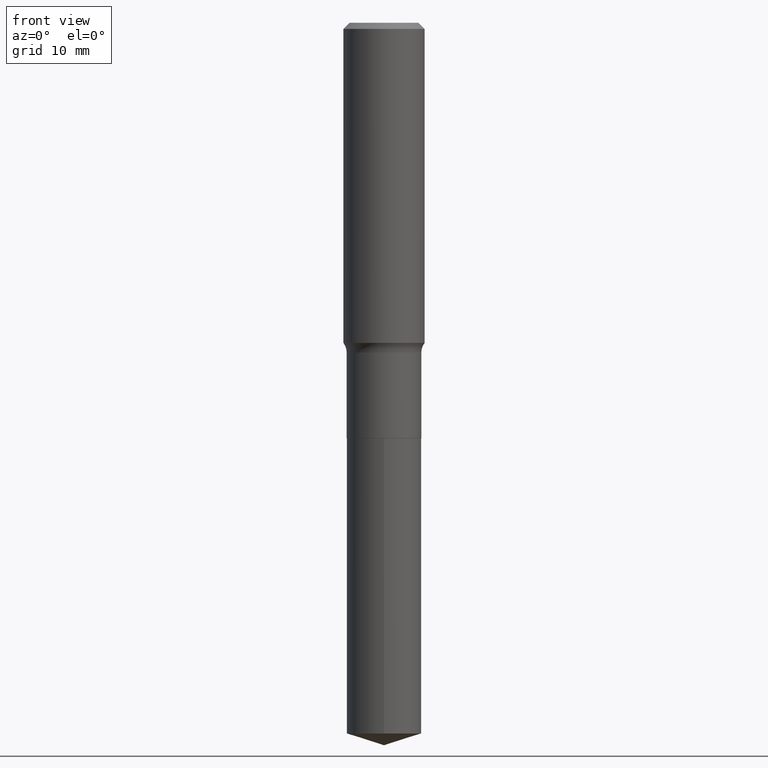
[diagram: clean part render]
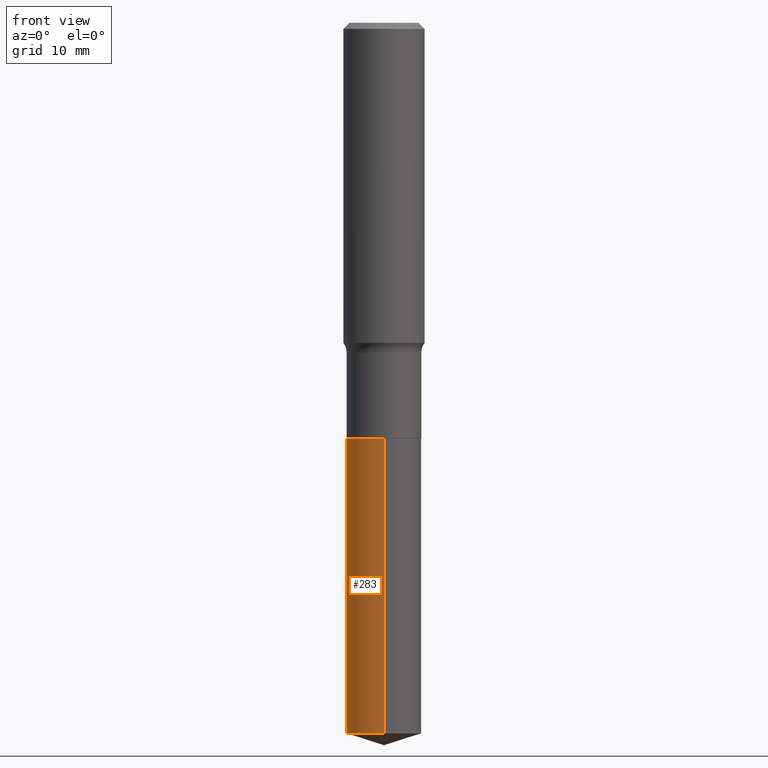
[diagram: same view with one face highlighted and labeled with its STEP entity id]
A machine part, front view. The second image highlights one B-rep face of the part: STEP entity #283.
In plain terms, the highlighted cylindrical surface (partial cylindrical patch) has radius 4.5999 mm, axis along (-0, 0, 1).
Its self-contained STEP definition (entity closure, byte-faithful):
#6 = AXIS2_PLACEMENT_3D ( 'NONE', #238, #266, #38 ) ;
#9 = CARTESIAN_POINT ( 'NONE',  ( 1.286792894461590621E-15, 0.1810999999999929888, -2.015700000000000269 ) ) ;
#30 = DIRECTION ( 'NONE',  ( -2.445392554448218203E-29, 3.491590535670392048E-15, 1.000000000000000000 ) ) ;
#38 = DIRECTION ( 'NONE',  ( -6.982962677686266711E-15, -1.000000000000000000, 3.016949744521549444E-15 ) ) ;
#40 = CIRCLE ( 'NONE', #6, 0.1811000000000000110 ) ;
#52 = ORIENTED_EDGE ( 'NONE', *, *, #136, .F. ) ;
#86 = VERTEX_POINT ( 'NONE', #191 ) ;
#99 = FACE_OUTER_BOUND ( 'NONE', #472, .T. ) ;
#108 = EDGE_CURVE ( 'NONE', #86, #351, #135, .T. ) ;
#126 = ORIENTED_EDGE ( 'NONE', *, *, #108, .T. ) ;
#133 = VERTEX_POINT ( 'NONE', #467 ) ;
#135 = LINE ( 'NONE', #231, #417 ) ;
#136 = EDGE_CURVE ( 'NONE', #355, #351, #40, .T. ) ;
#140 = CARTESIAN_POINT ( 'NONE',  ( -1.264614540928933635E-15, -0.1811000000000070609, -2.015699999999999381 ) ) ;
#143 = CARTESIAN_POINT ( 'NONE',  ( 1.286792894461625725E-15, 0.1810999999999929888, -2.015700000000000269 ) ) ;
#147 = CYLINDRICAL_SURFACE ( 'NONE', #458, 0.1811000000000000110 ) ;
#155 = CARTESIAN_POINT ( 'NONE',  ( 8.428931263980175270E-29, -1.203459201810845849E-14, -3.446799389334016528 ) ) ;
#189 = DIRECTION ( 'NONE',  ( -2.445392554448218203E-29, 3.491590535670392048E-15, 1.000000000000000000 ) ) ;
#191 = CARTESIAN_POINT ( 'NONE',  ( -1.264614540928898728E-15, -0.1811000000000120569, -3.446799389334016084 ) ) ;
#225 = DIRECTION ( 'NONE',  ( -2.445392554448218203E-29, 3.491590535670392442E-15, 1.000000000000000000 ) ) ;
#231 = CARTESIAN_POINT ( 'NONE',  ( -1.264614540928933635E-15, -0.1811000000000070609, -2.015699999999999381 ) ) ;
#238 = CARTESIAN_POINT ( 'NONE',  ( 4.929331472627379200E-29, -7.037778934706127955E-15, -2.015699999999999825 ) ) ;
#248 = DIRECTION ( 'NONE',  ( -6.982962677686266711E-15, -1.000000000000000000, 3.016949744521549444E-15 ) ) ;
#266 = DIRECTION ( 'NONE',  ( -2.445392554448218203E-29, 3.491590535670392048E-15, 1.000000000000000000 ) ) ;
#268 = CIRCLE ( 'NONE', #383, 0.1811000000000000110 ) ;
#283 = ADVANCED_FACE ( 'NONE', ( #99 ), #147, .T. ) ;
#345 = LINE ( 'NONE', #9, #454 ) ;
#351 = VERTEX_POINT ( 'NONE', #140 ) ;
#355 = VERTEX_POINT ( 'NONE', #143 ) ;
#383 = AXIS2_PLACEMENT_3D ( 'NONE', #155, #189, #422 ) ;
#387 = ORIENTED_EDGE ( 'NONE', *, *, #423, .F. ) ;
#389 = ORIENTED_EDGE ( 'NONE', *, *, #415, .T. ) ;
#415 = EDGE_CURVE ( 'NONE', #133, #86, #268, .T. ) ;
#417 = VECTOR ( 'NONE', #225, 39.37007874015748143 ) ;
#422 = DIRECTION ( 'NONE',  ( -6.982962677686266711E-15, -1.000000000000000000, 3.016949744521549444E-15 ) ) ;
#423 = EDGE_CURVE ( 'NONE', #133, #355, #345, .T. ) ;
#454 = VECTOR ( 'NONE', #463, 39.37007874015748143 ) ;
#458 = AXIS2_PLACEMENT_3D ( 'NONE', #488, #30, #248 ) ;
#463 = DIRECTION ( 'NONE',  ( -2.445392554448218203E-29, 3.491590535670392442E-15, 1.000000000000000000 ) ) ;
#467 = CARTESIAN_POINT ( 'NONE',  ( 1.286792894461625725E-15, 0.1810999999999879928, -3.446799389334016972 ) ) ;
#472 = EDGE_LOOP ( 'NONE', ( #387, #389, #126, #52 ) ) ;
#488 = CARTESIAN_POINT ( 'NONE',  ( 4.929331472627379200E-29, -7.037778934706127955E-15, -2.015699999999999825 ) ) ;